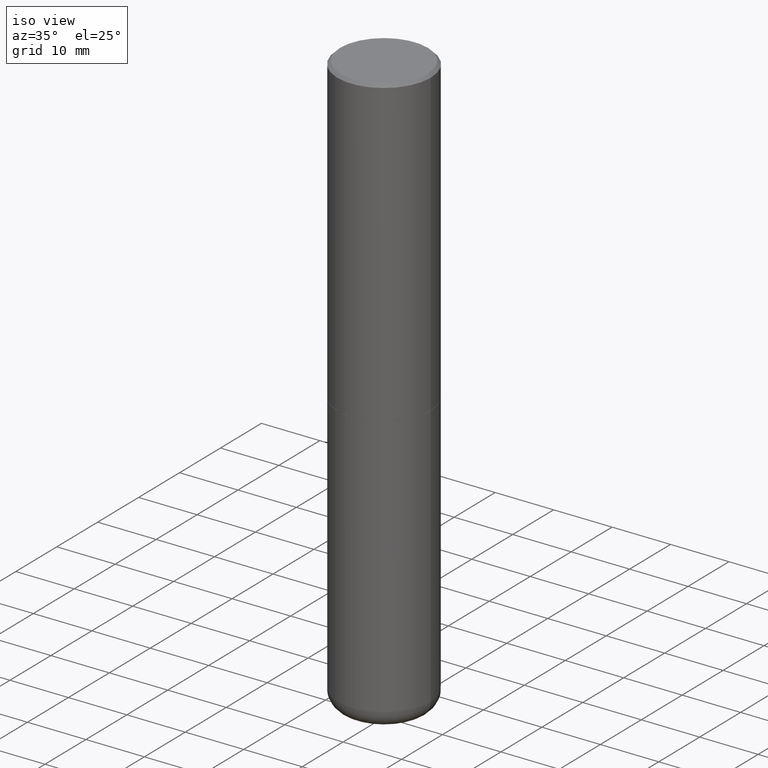
[diagram: clean part render]
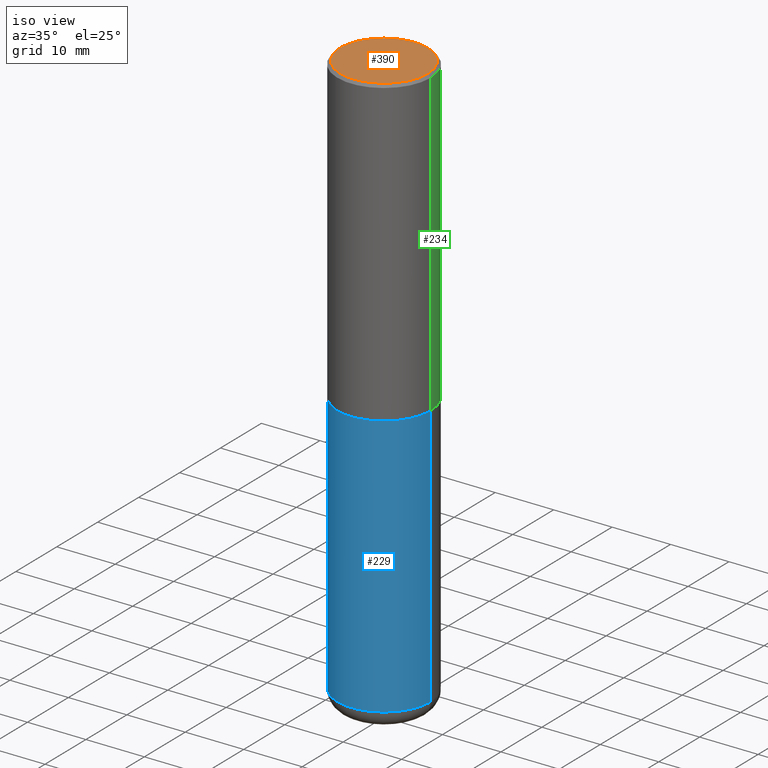
[diagram: same view with three faces highlighted in distinct colors, each labeled with its STEP entity id]
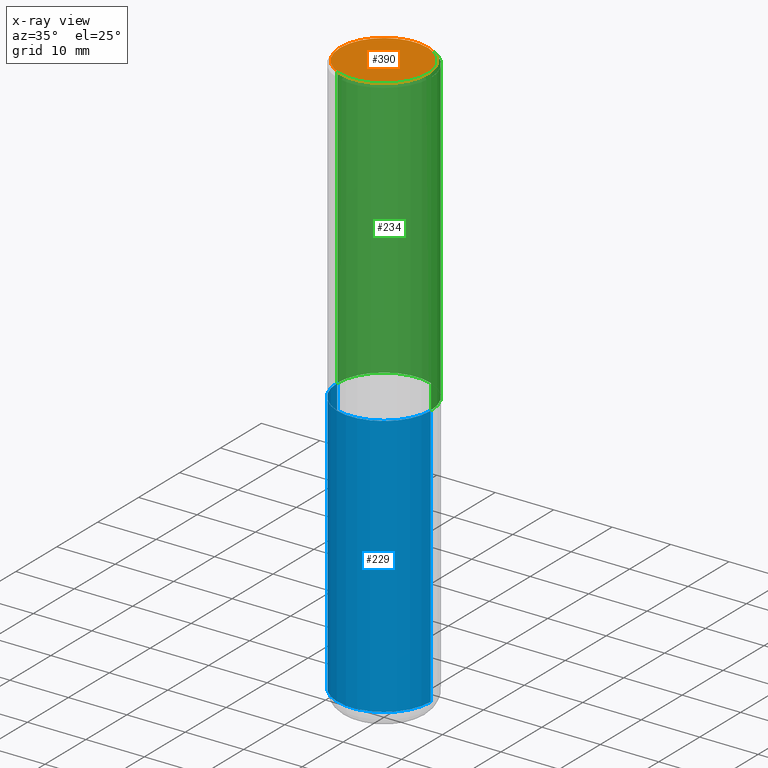
[diagram: x-ray of the same camera — body ghosted, the three highlighted faces saturated]
A machine part, iso view with three faces highlighted in distinct colors.
The next image is the same camera in x-ray (body ghosted, the three faces saturated) — at least one of them is partly hidden behind the body in this view.
Their STEP definitions:

[orange] entity #390 — the highlighted planar face has unit normal (0, -0, -1).
#6 = DIRECTION ( 'NONE',  ( -2.445468806185136597E-29, 3.491481338843145583E-15, 1.000000000000000000 ) ) ;
#9 = PLANE ( 'NONE',  #18 ) ;
#18 = AXIS2_PLACEMENT_3D ( 'NONE', #391, #97, #300 ) ;
#39 = CARTESIAN_POINT ( 'NONE',  ( 0.2949499999999997679, -2.127023677808858891E-15, 1.835460370743323251E-16 ) ) ;
#42 = DIRECTION ( 'NONE',  ( 1.000000000000000000, -6.982962677686265922E-15, 4.874125435057325556E-29 ) ) ;
#97 = DIRECTION ( 'NONE',  ( 2.438088387897960049E-29, -3.491481338843145188E-15, -1.000000000000000000 ) ) ;
#133 = DIRECTION ( 'NONE',  ( 1.000000000000000000, -6.982962677686265922E-15, 4.874125435057325556E-29 ) ) ;
#143 = CIRCLE ( 'NONE', #382, 0.2949499999999997679 ) ;
#176 = AXIS2_PLACEMENT_3D ( 'NONE', #273, #6, #133 ) ;
#179 = EDGE_LOOP ( 'NONE', ( #306, #250 ) ) ;
#200 = DIRECTION ( 'NONE',  ( -2.445468806185136597E-29, 3.491481338843145583E-15, 1.000000000000000000 ) ) ;
#208 = CARTESIAN_POINT ( 'NONE',  ( -0.2949499999999997679, 2.094539655171994924E-15, 1.835460370743031619E-16 ) ) ;
#250 = ORIENTED_EDGE ( 'NONE', *, *, #377, .T. ) ;
#271 = FACE_OUTER_BOUND ( 'NONE', #179, .T. ) ;
#273 = CARTESIAN_POINT ( 'NONE',  ( -4.488561081641444621E-45, 6.408475632635922878E-31, 1.835460370743176819E-16 ) ) ;
#294 = VERTEX_POINT ( 'NONE', #39 ) ;
#299 = VERTEX_POINT ( 'NONE', #208 ) ;
#300 = DIRECTION ( 'NONE',  ( -1.000000000000000000, 6.982962677686265922E-15, -4.876176775795935793E-29 ) ) ;
#304 = CIRCLE ( 'NONE', #176, 0.2949499999999997679 ) ;
#306 = ORIENTED_EDGE ( 'NONE', *, *, #392, .T. ) ;
#355 = CARTESIAN_POINT ( 'NONE',  ( -4.488561081641444621E-45, 6.408475632635922878E-31, 1.835460370743176819E-16 ) ) ;
#377 = EDGE_CURVE ( 'NONE', #294, #299, #143, .T. ) ;
#382 = AXIS2_PLACEMENT_3D ( 'NONE', #355, #200, #42 ) ;
#390 = ADVANCED_FACE ( 'NONE', ( #271 ), #9, .F. ) ;
#391 = CARTESIAN_POINT ( 'NONE',  ( 2.059624841783562486E-15, 0.2949499999999997679, -9.380394023546260134E-16 ) ) ;
#392 = EDGE_CURVE ( 'NONE', #299, #294, #304, .T. ) ;

[blue] entity #229 — the highlighted cylindrical surface (partial cylindrical patch) has radius 7.9997 mm, axis along (-0, 0, 1).
#12 = VECTOR ( 'NONE', #303, 39.37007874015748143 ) ;
#13 = EDGE_CURVE ( 'NONE', #132, #396, #268, .T. ) ;
#20 = LINE ( 'NONE', #283, #341 ) ;
#52 = ORIENTED_EDGE ( 'NONE', *, *, #414, .F. ) ;
#57 = DIRECTION ( 'NONE',  ( -2.445468806185136597E-29, 3.491481338843145583E-15, 1.000000000000000000 ) ) ;
#58 = EDGE_CURVE ( 'NONE', #80, #224, #212, .T. ) ;
#63 = CARTESIAN_POINT ( 'NONE',  ( 0.3149500000000000077, -9.347044692216978073E-15, -2.047199999999999687 ) ) ;
#75 = EDGE_LOOP ( 'NONE', ( #52, #240, #248, #207 ) ) ;
#80 = VERTEX_POINT ( 'NONE', #148 ) ;
#82 = EDGE_CURVE ( 'NONE', #396, #224, #20, .T. ) ;
#99 = AXIS2_PLACEMENT_3D ( 'NONE', #373, #152, #343 ) ;
#121 = DIRECTION ( 'NONE',  ( -2.445468806185136597E-29, 3.491481338843145583E-15, 1.000000000000000000 ) ) ;
#132 = VERTEX_POINT ( 'NONE', #295 ) ;
#148 = CARTESIAN_POINT ( 'NONE',  ( -0.3149500000000000077, -8.002834994617451969E-15, -2.047199999999999687 ) ) ;
#149 = DIRECTION ( 'NONE',  ( 1.000000000000000000, -6.982962677686269866E-15, 0.000000000000000000 ) ) ;
#152 = DIRECTION ( 'NONE',  ( -2.445468806185136597E-29, 3.491481338843145583E-15, 1.000000000000000000 ) ) ;
#157 = DIRECTION ( 'NONE',  ( 1.000000000000000000, -6.982962677686266711E-15, 4.876176775795936353E-29 ) ) ;
#191 = FACE_OUTER_BOUND ( 'NONE', #75, .T. ) ;
#196 = CARTESIAN_POINT ( 'NONE',  ( 0.000000000000000000, 0.000000000000000000, 0.000000000000000000 ) ) ;
#207 = ORIENTED_EDGE ( 'NONE', *, *, #58, .F. ) ;
#211 = CARTESIAN_POINT ( 'NONE',  ( 0.3149500000000000077, -1.553290218024537915E-14, -3.818900000000000183 ) ) ;
#212 = CIRCLE ( 'NONE', #99, 0.3149500000000000077 ) ;
#224 = VERTEX_POINT ( 'NONE', #63 ) ;
#229 = ADVANCED_FACE ( 'NONE', ( #191 ), #319, .T. ) ;
#240 = ORIENTED_EDGE ( 'NONE', *, *, #13, .T. ) ;
#248 = ORIENTED_EDGE ( 'NONE', *, *, #82, .T. ) ;
#268 = CIRCLE ( 'NONE', #285, 0.3149500000000000077 ) ;
#279 = AXIS2_PLACEMENT_3D ( 'NONE', #196, #121, #157 ) ;
#283 = CARTESIAN_POINT ( 'NONE',  ( 0.3149500000000000077, -2.199284095337289871E-15, 1.535751875536930130E-29 ) ) ;
#285 = AXIS2_PLACEMENT_3D ( 'NONE', #318, #57, #149 ) ;
#286 = DIRECTION ( 'NONE',  ( -2.445468806185136877E-29, 3.491481338843145188E-15, 1.000000000000000000 ) ) ;
#295 = CARTESIAN_POINT ( 'NONE',  ( -0.3149500000000000077, -1.109576373863165330E-14, -3.818900000000000183 ) ) ;
#303 = DIRECTION ( 'NONE',  ( -2.445468806185136877E-29, 3.491481338843145188E-15, 1.000000000000000000 ) ) ;
#310 = CARTESIAN_POINT ( 'NONE',  ( -0.3149500000000000077, 2.237854346276435590E-15, -1.549218606675782676E-29 ) ) ;
#318 = CARTESIAN_POINT ( 'NONE',  ( 9.339000823940418668E-29, -1.333361808490808928E-14, -3.818900000000000183 ) ) ;
#319 = CYLINDRICAL_SURFACE ( 'NONE', #279, 0.3149500000000000077 ) ;
#330 = LINE ( 'NONE', #310, #12 ) ;
#341 = VECTOR ( 'NONE', #286, 39.37007874015748143 ) ;
#343 = DIRECTION ( 'NONE',  ( 1.000000000000000000, -6.982962677686269866E-15, 0.000000000000000000 ) ) ;
#373 = CARTESIAN_POINT ( 'NONE',  ( 5.006363740022211120E-29, -7.147760596879686624E-15, -2.047199999999999687 ) ) ;
#396 = VERTEX_POINT ( 'NONE', #211 ) ;
#414 = EDGE_CURVE ( 'NONE', #132, #80, #330, .T. ) ;

[green] entity #234 — the highlighted cylindrical surface (partial cylindrical patch) has radius 7.9997 mm, axis along (-0, 0, 1).
#1 = CARTESIAN_POINT ( 'NONE',  ( 4.890937612370289799E-31, -6.982962677686315028E-17, -0.02000000000000006981 ) ) ;
#25 = ORIENTED_EDGE ( 'NONE', *, *, #263, .F. ) ;
#26 = DIRECTION ( 'NONE',  ( -2.445468806185136877E-29, 3.491481338843145188E-15, 1.000000000000000000 ) ) ;
#35 = DIRECTION ( 'NONE',  ( 1.000000000000000000, -6.982962677686265922E-15, 4.876176775795935232E-29 ) ) ;
#47 = AXIS2_PLACEMENT_3D ( 'NONE', #89, #321, #35 ) ;
#54 = EDGE_CURVE ( 'NONE', #118, #183, #61, .T. ) ;
#56 = EDGE_LOOP ( 'NONE', ( #177, #413, #25, #264 ) ) ;
#60 = CIRCLE ( 'NONE', #155, 0.3149500000000002853 ) ;
#61 = LINE ( 'NONE', #376, #317 ) ;
#67 = CARTESIAN_POINT ( 'NONE',  ( 0.3149499999999999522, -2.230543471175006661E-15, -0.02000000000000006981 ) ) ;
#89 = CARTESIAN_POINT ( 'NONE',  ( 0.000000000000000000, 0.000000000000000000, 0.000000000000000000 ) ) ;
#92 = VERTEX_POINT ( 'NONE', #221 ) ;
#93 = DIRECTION ( 'NONE',  ( -2.445468806185136597E-29, 3.491481338843145583E-15, 1.000000000000000000 ) ) ;
#94 = EDGE_CURVE ( 'NONE', #92, #171, #146, .T. ) ;
#95 = DIRECTION ( 'NONE',  ( 1.000000000000000000, -6.982962677686267499E-15, 0.000000000000000000 ) ) ;
#118 = VERTEX_POINT ( 'NONE', #327 ) ;
#123 = CYLINDRICAL_SURFACE ( 'NONE', #47, 0.3149500000000001743 ) ;
#131 = CARTESIAN_POINT ( 'NONE',  ( 5.003918271216025517E-29, -7.144269115540843617E-15, -2.046199999999999797 ) ) ;
#146 = LINE ( 'NONE', #342, #322 ) ;
#155 = AXIS2_PLACEMENT_3D ( 'NONE', #131, #93, #95 ) ;
#160 = FACE_OUTER_BOUND ( 'NONE', #56, .T. ) ;
#171 = VERTEX_POINT ( 'NONE', #349 ) ;
#177 = ORIENTED_EDGE ( 'NONE', *, *, #184, .T. ) ;
#183 = VERTEX_POINT ( 'NONE', #67 ) ;
#184 = EDGE_CURVE ( 'NONE', #118, #92, #60, .T. ) ;
#185 = DIRECTION ( 'NONE',  ( -2.445468806185136877E-29, 3.491481338843145188E-15, 1.000000000000000000 ) ) ;
#221 = CARTESIAN_POINT ( 'NONE',  ( -0.3149500000000002853, -1.369195024882414317E-15, -2.046199999999999797 ) ) ;
#234 = ADVANCED_FACE ( 'NONE', ( #160 ), #123, .T. ) ;
#259 = CIRCLE ( 'NONE', #375, 0.3149499999999999522 ) ;
#263 = EDGE_CURVE ( 'NONE', #183, #171, #259, .T. ) ;
#264 = ORIENTED_EDGE ( 'NONE', *, *, #54, .F. ) ;
#317 = VECTOR ( 'NONE', #26, 39.37007874015748143 ) ;
#321 = DIRECTION ( 'NONE',  ( -2.445468806185136597E-29, 3.491481338843145583E-15, 1.000000000000000000 ) ) ;
#322 = VECTOR ( 'NONE', #185, 39.37007874015748143 ) ;
#327 = CARTESIAN_POINT ( 'NONE',  ( 0.3149500000000002853, -9.343553210878135066E-15, -2.046199999999999797 ) ) ;
#342 = CARTESIAN_POINT ( 'NONE',  ( -0.3149500000000001743, 2.237854346276436774E-15, -1.549218606675783237E-29 ) ) ;
#349 = CARTESIAN_POINT ( 'NONE',  ( -0.3149499999999999522, 2.129454468560426178E-15, -0.02000000000000006981 ) ) ;
#375 = AXIS2_PLACEMENT_3D ( 'NONE', #1, #416, #388 ) ;
#376 = CARTESIAN_POINT ( 'NONE',  ( 0.3149500000000001743, -2.199284095337290660E-15, 1.535751875536930690E-29 ) ) ;
#388 = DIRECTION ( 'NONE',  ( 1.000000000000000000, -6.982962677686266711E-15, 0.000000000000000000 ) ) ;
#413 = ORIENTED_EDGE ( 'NONE', *, *, #94, .T. ) ;
#416 = DIRECTION ( 'NONE',  ( -2.445468806185136597E-29, 3.491481338843145583E-15, 1.000000000000000000 ) ) ;